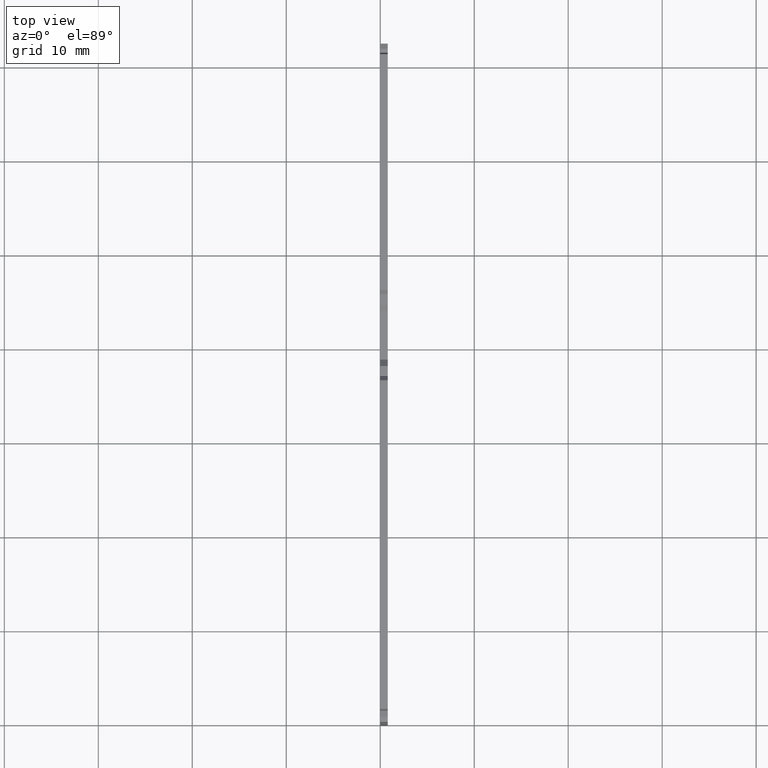
[diagram: clean part render]
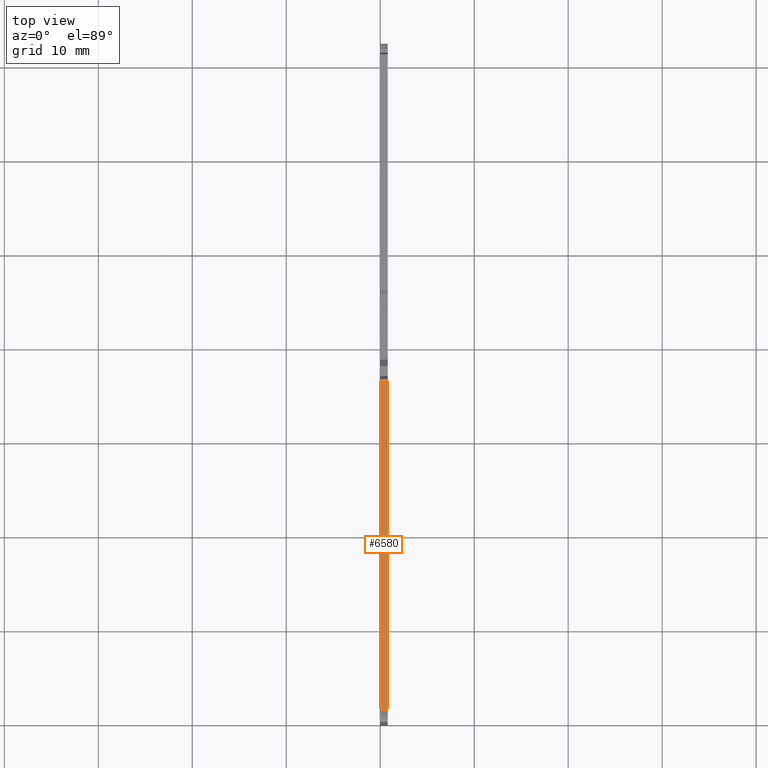
[diagram: same view with one face highlighted and labeled with its STEP entity id]
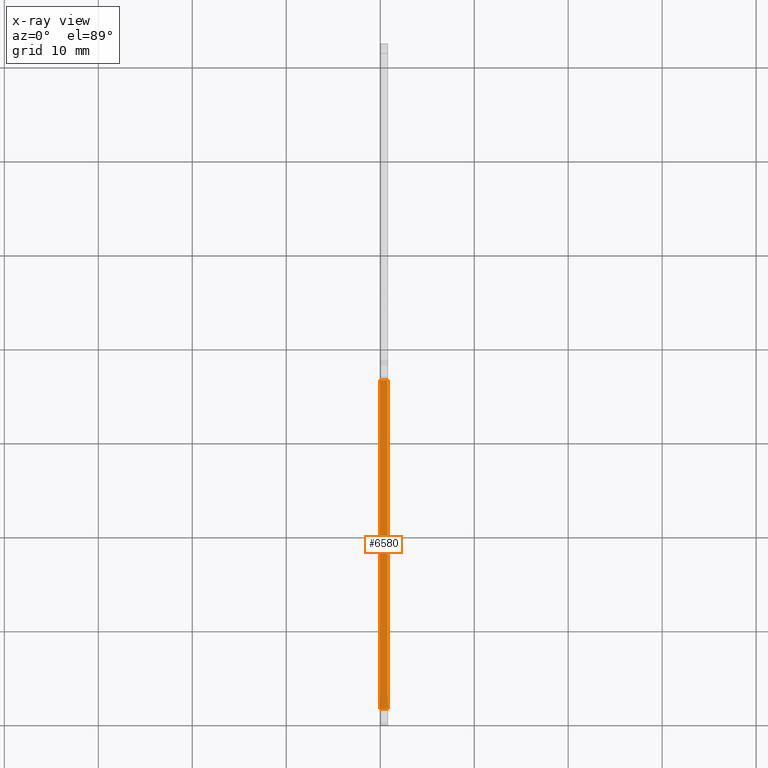
[diagram: x-ray of the same camera — body ghosted, the highlighted face saturated]
A machine part, top view. The second image highlights one B-rep face of the part: STEP entity #6580.
The next image is the same camera in x-ray: the body ghosted, the highlighted face saturated — about 0% of this face is hidden behind the body in this view.
In plain terms, the highlighted planar face has unit normal (-0, -0, 1).
Its self-contained STEP definition (entity closure, byte-faithful):
#4240=CARTESIAN_POINT('',(36.0811125570149,-9.15000000001895,
1.34999999999997));
#4250=VERTEX_POINT('',#4240);
#4280=CARTESIAN_POINT('',(47.920285,-9.15000000001752,1.34999999999997))
;
#4290=DIRECTION('',(1.,1.21042065259758E-13,0.));
#4300=VECTOR('',#4290,1.);
#4310=LINE('',#4280,#4300);
#4320=CARTESIAN_POINT('',(1.0862844609657,-9.15000000002318,
1.34999999999997));
#4330=VERTEX_POINT('',#4320);
#4340=EDGE_CURVE('',#4330,#4250,#4310,.T.);
#6280=CARTESIAN_POINT('',(24.1926161584213,-9.15000000002039,
2.19999999999998));
#6290=DIRECTION('',(-1.21042065259758E-13,1.,0.));
#6300=DIRECTION('',(1.,1.21042065259758E-13,0.));
#6310=AXIS2_PLACEMENT_3D('',#6280,#6290,#6300);
#6320=PLANE('',#6310);
#6330=CARTESIAN_POINT('',(47.920285,-9.15000000001752,2.14999999999998))
;
#6340=DIRECTION('',(1.,1.21042065259758E-13,0.));
#6350=VECTOR('',#6340,1.);
#6360=LINE('',#6330,#6350);
#6370=CARTESIAN_POINT('',(1.08628446096783,-9.15000000002318,
2.14999999999998));
#6380=VERTEX_POINT('',#6370);
#6390=CARTESIAN_POINT('',(36.0811125570149,-9.15000000001895,
2.14999999999998));
#6400=VERTEX_POINT('',#6390);
#6410=EDGE_CURVE('',#6380,#6400,#6360,.T.);
#6420=ORIENTED_EDGE('',*,*,#6410,.T.);
#6430=CARTESIAN_POINT('',(1.0862844609621,-9.15000000002319,
-2.8421709430404E-14));
#6440=DIRECTION('',(-2.66975915507946E-12,-3.23180503406266E-25,-1.));
#6450=VECTOR('',#6440,1.);
#6460=LINE('',#6430,#6450);
#6470=EDGE_CURVE('',#6380,#4330,#6460,.T.);
#6480=ORIENTED_EDGE('',*,*,#6470,.F.);
#6490=ORIENTED_EDGE('',*,*,#4340,.F.);
#6500=CARTESIAN_POINT('',(36.0811125570149,-9.15000000001895,
-2.8421709430404E-14));
#6510=DIRECTION('',(0.,0.,1.));
#6520=VECTOR('',#6510,1.);
#6530=LINE('',#6500,#6520);
#6540=EDGE_CURVE('',#4250,#6400,#6530,.T.);
#6550=ORIENTED_EDGE('',*,*,#6540,.F.);
#6560=EDGE_LOOP('',(#6550,#6490,#6480,#6420));
#6570=FACE_OUTER_BOUND('',#6560,.T.);
#6580=ADVANCED_FACE('',(#6570),#6320,.T.);